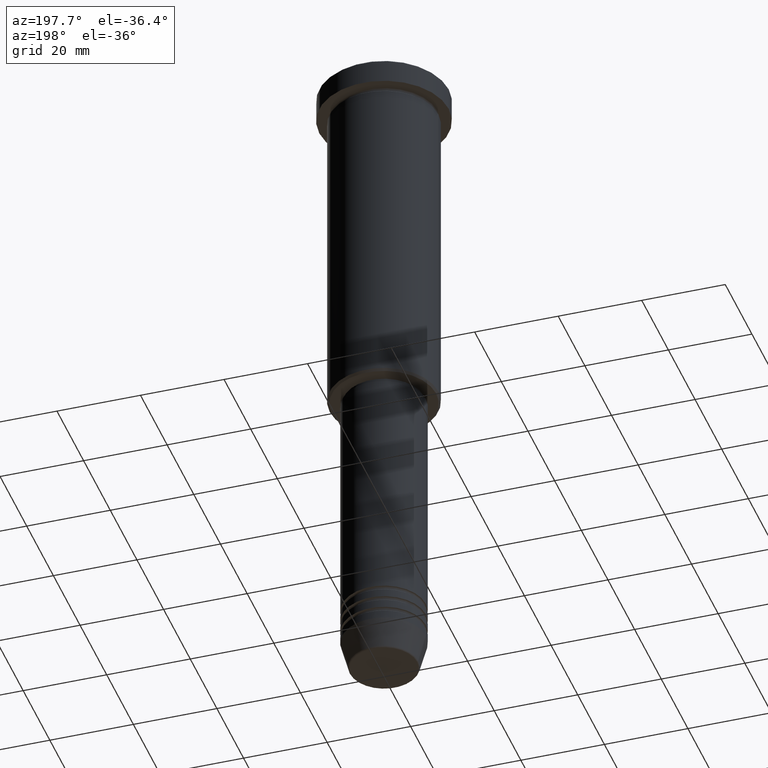
[diagram: clean part render]
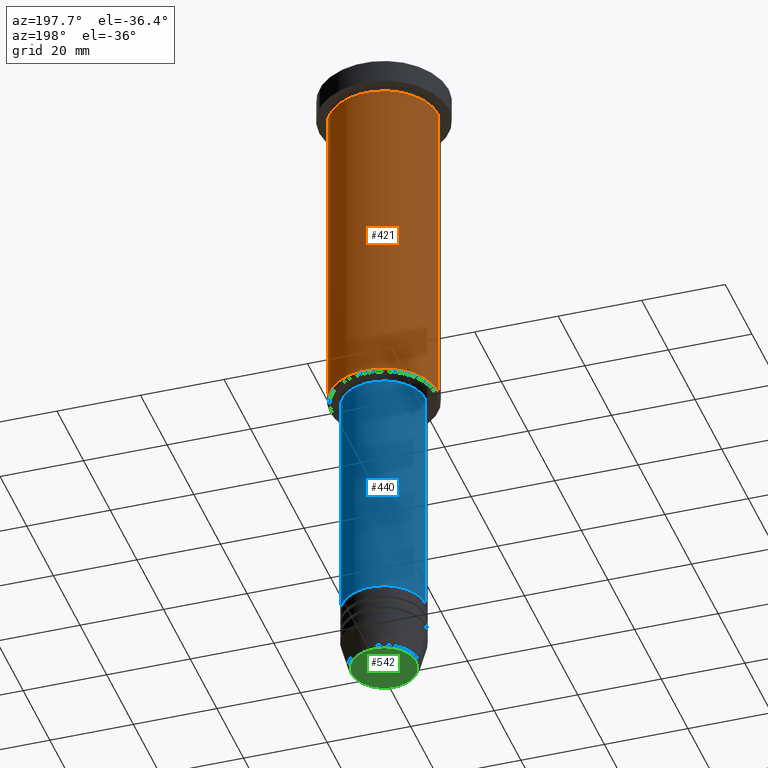
[diagram: same view with three faces highlighted in distinct colors, each labeled with its STEP entity id]
A machine part, auxiliary view with three faces highlighted in distinct colors.
Their STEP definitions:

[orange] entity #421 — the highlighted cylindrical surface (partial cylindrical patch) has radius 13 mm, axis along (-0, -0, 1).
#17 = CARTESIAN_POINT ( 'NONE',  ( -13.00000000000000000, 1.592040838891559095E-15, -85.50000000000001421 ) ) ;
#35 = VERTEX_POINT ( 'NONE', #799 ) ;
#44 = DIRECTION ( 'NONE',  ( 1.000000000000000000, 0.000000000000000000, 0.000000000000000000 ) ) ;
#98 = EDGE_LOOP ( 'NONE', ( #1134, #288, #952, #973 ) ) ;
#104 = CIRCLE ( 'NONE', #297, 13.00000000000000000 ) ;
#116 = CARTESIAN_POINT ( 'NONE',  ( 13.00000000000000000, 0.000000000000000000, -85.50000000000001421 ) ) ;
#123 = CARTESIAN_POINT ( 'NONE',  ( 13.00000000000000000, 0.000000000000000000, -6.999999999999995559 ) ) ;
#141 = DIRECTION ( 'NONE',  ( 1.000000000000000000, 0.000000000000000000, 0.000000000000000000 ) ) ;
#171 = CARTESIAN_POINT ( 'NONE',  ( -13.00000000000000000, 1.592040838891559095E-15, 0.000000000000000000 ) ) ;
#216 = EDGE_CURVE ( 'NONE', #703, #35, #804, .T. ) ;
#227 = CARTESIAN_POINT ( 'NONE',  ( 0.000000000000000000, 0.000000000000000000, -85.50000000000001421 ) ) ;
#288 = ORIENTED_EDGE ( 'NONE', *, *, #216, .T. ) ;
#297 = AXIS2_PLACEMENT_3D ( 'NONE', #1045, #1154, #44 ) ;
#328 = DIRECTION ( 'NONE',  ( -1.000000000000000000, 0.000000000000000000, 0.000000000000000000 ) ) ;
#348 = DIRECTION ( 'NONE',  ( -0.000000000000000000, -0.000000000000000000, 1.000000000000000000 ) ) ;
#421 = ADVANCED_FACE ( 'NONE', ( #519 ), #770, .T. ) ;
#428 = CARTESIAN_POINT ( 'NONE',  ( 0.000000000000000000, 0.000000000000000000, 0.000000000000000000 ) ) ;
#497 = AXIS2_PLACEMENT_3D ( 'NONE', #428, #690, #141 ) ;
#505 = DIRECTION ( 'NONE',  ( -0.000000000000000000, -0.000000000000000000, 1.000000000000000000 ) ) ;
#519 = FACE_OUTER_BOUND ( 'NONE', #98, .T. ) ;
#690 = DIRECTION ( 'NONE',  ( -0.000000000000000000, -0.000000000000000000, 1.000000000000000000 ) ) ;
#694 = DIRECTION ( 'NONE',  ( -0.000000000000000000, -0.000000000000000000, 1.000000000000000000 ) ) ;
#703 = VERTEX_POINT ( 'NONE', #17 ) ;
#737 = VECTOR ( 'NONE', #694, 1000.000000000000000 ) ;
#760 = VECTOR ( 'NONE', #348, 1000.000000000000000 ) ;
#770 = CYLINDRICAL_SURFACE ( 'NONE', #497, 13.00000000000000000 ) ;
#781 = CARTESIAN_POINT ( 'NONE',  ( 13.00000000000000000, 0.000000000000000000, 0.000000000000000000 ) ) ;
#799 = CARTESIAN_POINT ( 'NONE',  ( -13.00000000000000000, 1.592040838891559095E-15, -6.999999999999995559 ) ) ;
#804 = LINE ( 'NONE', #171, #760 ) ;
#856 = EDGE_CURVE ( 'NONE', #935, #35, #104, .T. ) ;
#900 = EDGE_CURVE ( 'NONE', #1146, #703, #963, .T. ) ;
#918 = AXIS2_PLACEMENT_3D ( 'NONE', #227, #505, #328 ) ;
#920 = EDGE_CURVE ( 'NONE', #1146, #935, #1141, .T. ) ;
#935 = VERTEX_POINT ( 'NONE', #123 ) ;
#952 = ORIENTED_EDGE ( 'NONE', *, *, #856, .F. ) ;
#963 = CIRCLE ( 'NONE', #918, 13.00000000000000000 ) ;
#973 = ORIENTED_EDGE ( 'NONE', *, *, #920, .F. ) ;
#1045 = CARTESIAN_POINT ( 'NONE',  ( 0.000000000000000000, 0.000000000000000000, -6.999999999999995559 ) ) ;
#1134 = ORIENTED_EDGE ( 'NONE', *, *, #900, .T. ) ;
#1141 = LINE ( 'NONE', #781, #737 ) ;
#1146 = VERTEX_POINT ( 'NONE', #116 ) ;
#1154 = DIRECTION ( 'NONE',  ( -0.000000000000000000, -0.000000000000000000, 1.000000000000000000 ) ) ;

[blue] entity #440 — the highlighted cylindrical surface (partial cylindrical patch) has radius 10 mm, axis along (-0, -0, 1).
#34 = CIRCLE ( 'NONE', #337, 10.00000000000000000 ) ;
#40 = LINE ( 'NONE', #136, #866 ) ;
#46 = VERTEX_POINT ( 'NONE', #1040 ) ;
#51 = CYLINDRICAL_SURFACE ( 'NONE', #300, 10.00000000000000000 ) ;
#111 = DIRECTION ( 'NONE',  ( 1.000000000000000000, 0.000000000000000000, 0.000000000000000000 ) ) ;
#136 = CARTESIAN_POINT ( 'NONE',  ( 10.00000000000000000, 0.000000000000000000, 0.000000000000000000 ) ) ;
#144 = CIRCLE ( 'NONE', #776, 10.00000000000000000 ) ;
#149 = CARTESIAN_POINT ( 'NONE',  ( 0.000000000000000000, 0.000000000000000000, 0.000000000000000000 ) ) ;
#173 = ORIENTED_EDGE ( 'NONE', *, *, #674, .T. ) ;
#179 = VERTEX_POINT ( 'NONE', #640 ) ;
#197 = DIRECTION ( 'NONE',  ( -0.000000000000000000, -0.000000000000000000, 1.000000000000000000 ) ) ;
#240 = EDGE_LOOP ( 'NONE', ( #173, #1067, #660, #558 ) ) ;
#277 = EDGE_CURVE ( 'NONE', #377, #335, #1019, .T. ) ;
#300 = AXIS2_PLACEMENT_3D ( 'NONE', #149, #513, #685 ) ;
#335 = VERTEX_POINT ( 'NONE', #936 ) ;
#337 = AXIS2_PLACEMENT_3D ( 'NONE', #820, #901, #111 ) ;
#377 = VERTEX_POINT ( 'NONE', #734 ) ;
#391 = CARTESIAN_POINT ( 'NONE',  ( 0.000000000000000000, 0.000000000000000000, -87.00000000000000000 ) ) ;
#440 = ADVANCED_FACE ( 'NONE', ( #594 ), #51, .T. ) ;
#513 = DIRECTION ( 'NONE',  ( -0.000000000000000000, -0.000000000000000000, 1.000000000000000000 ) ) ;
#558 = ORIENTED_EDGE ( 'NONE', *, *, #871, .F. ) ;
#561 = CARTESIAN_POINT ( 'NONE',  ( -10.00000000000000000, 1.224646799147353256E-15, 0.000000000000000000 ) ) ;
#563 = DIRECTION ( 'NONE',  ( 1.000000000000000000, 0.000000000000000000, 0.000000000000000000 ) ) ;
#594 = FACE_OUTER_BOUND ( 'NONE', #240, .T. ) ;
#640 = CARTESIAN_POINT ( 'NONE',  ( 10.00000000000000000, 0.000000000000000000, -87.00000000000000000 ) ) ;
#645 = VECTOR ( 'NONE', #197, 1000.000000000000000 ) ;
#660 = ORIENTED_EDGE ( 'NONE', *, *, #1140, .F. ) ;
#674 = EDGE_CURVE ( 'NONE', #46, #377, #34, .T. ) ;
#685 = DIRECTION ( 'NONE',  ( 1.000000000000000000, 0.000000000000000000, 0.000000000000000000 ) ) ;
#734 = CARTESIAN_POINT ( 'NONE',  ( -10.00000000000000000, 1.224646799147353256E-15, -144.9999999999999716 ) ) ;
#776 = AXIS2_PLACEMENT_3D ( 'NONE', #391, #1120, #563 ) ;
#820 = CARTESIAN_POINT ( 'NONE',  ( 0.000000000000000000, 0.000000000000000000, -144.9999999999999716 ) ) ;
#866 = VECTOR ( 'NONE', #872, 1000.000000000000000 ) ;
#871 = EDGE_CURVE ( 'NONE', #46, #179, #40, .T. ) ;
#872 = DIRECTION ( 'NONE',  ( -0.000000000000000000, -0.000000000000000000, 1.000000000000000000 ) ) ;
#901 = DIRECTION ( 'NONE',  ( -0.000000000000000000, -0.000000000000000000, 1.000000000000000000 ) ) ;
#936 = CARTESIAN_POINT ( 'NONE',  ( -10.00000000000000000, 1.224646799147353256E-15, -87.00000000000000000 ) ) ;
#1019 = LINE ( 'NONE', #561, #645 ) ;
#1040 = CARTESIAN_POINT ( 'NONE',  ( 10.00000000000000000, 0.000000000000000000, -144.9999999999999716 ) ) ;
#1067 = ORIENTED_EDGE ( 'NONE', *, *, #277, .T. ) ;
#1120 = DIRECTION ( 'NONE',  ( -0.000000000000000000, -0.000000000000000000, 1.000000000000000000 ) ) ;
#1140 = EDGE_CURVE ( 'NONE', #179, #335, #144, .T. ) ;

[green] entity #542 — the highlighted planar face has unit normal (0, -0, 1).
#8 = CARTESIAN_POINT ( 'NONE',  ( 7.740692158992664496, 0.000000000000000000, -160.9999999999999716 ) ) ;
#39 = CIRCLE ( 'NONE', #923, 7.740692158992664496 ) ;
#100 = VERTEX_POINT ( 'NONE', #258 ) ;
#209 = VERTEX_POINT ( 'NONE', #8 ) ;
#218 = CARTESIAN_POINT ( 'NONE',  ( 0.000000000000000000, 0.000000000000000000, -160.9999999999999716 ) ) ;
#258 = CARTESIAN_POINT ( 'NONE',  ( -7.740692158992664496, 9.775343368540048996E-16, -160.9999999999999716 ) ) ;
#299 = DIRECTION ( 'NONE',  ( 1.000000000000000000, 0.000000000000000000, 0.000000000000000000 ) ) ;
#308 = EDGE_LOOP ( 'NONE', ( #890, #557 ) ) ;
#349 = PLANE ( 'NONE',  #352 ) ;
#352 = AXIS2_PLACEMENT_3D ( 'NONE', #990, #888, #979 ) ;
#364 = EDGE_CURVE ( 'NONE', #209, #100, #39, .T. ) ;
#379 = EDGE_CURVE ( 'NONE', #100, #209, #801, .T. ) ;
#542 = ADVANCED_FACE ( 'NONE', ( #1173 ), #349, .F. ) ;
#557 = ORIENTED_EDGE ( 'NONE', *, *, #379, .T. ) ;
#752 = DIRECTION ( 'NONE',  ( 0.000000000000000000, 0.000000000000000000, -1.000000000000000000 ) ) ;
#764 = CARTESIAN_POINT ( 'NONE',  ( 0.000000000000000000, 0.000000000000000000, -160.9999999999999716 ) ) ;
#801 = CIRCLE ( 'NONE', #987, 7.740692158992664496 ) ;
#888 = DIRECTION ( 'NONE',  ( 0.000000000000000000, -0.000000000000000000, 1.000000000000000000 ) ) ;
#890 = ORIENTED_EDGE ( 'NONE', *, *, #364, .T. ) ;
#923 = AXIS2_PLACEMENT_3D ( 'NONE', #764, #752, #299 ) ;
#928 = DIRECTION ( 'NONE',  ( 1.000000000000000000, 0.000000000000000000, 0.000000000000000000 ) ) ;
#979 = DIRECTION ( 'NONE',  ( 1.000000000000000000, 0.000000000000000000, 0.000000000000000000 ) ) ;
#987 = AXIS2_PLACEMENT_3D ( 'NONE', #218, #1102, #928 ) ;
#990 = CARTESIAN_POINT ( 'NONE',  ( 0.000000000000000000, 0.000000000000000000, -160.9999999999999716 ) ) ;
#1102 = DIRECTION ( 'NONE',  ( 0.000000000000000000, 0.000000000000000000, -1.000000000000000000 ) ) ;
#1173 = FACE_OUTER_BOUND ( 'NONE', #308, .T. ) ;